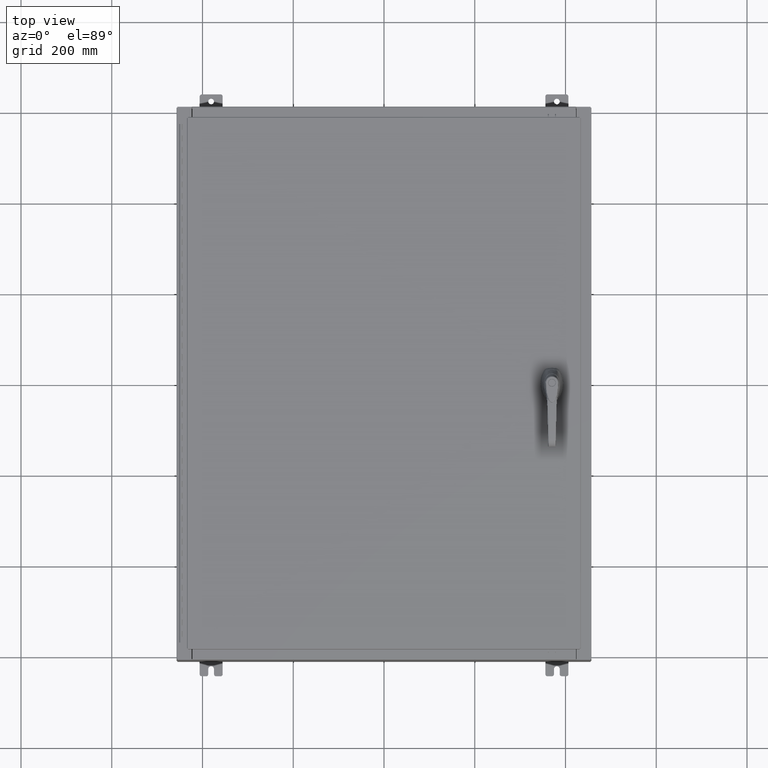
[diagram: clean part render]
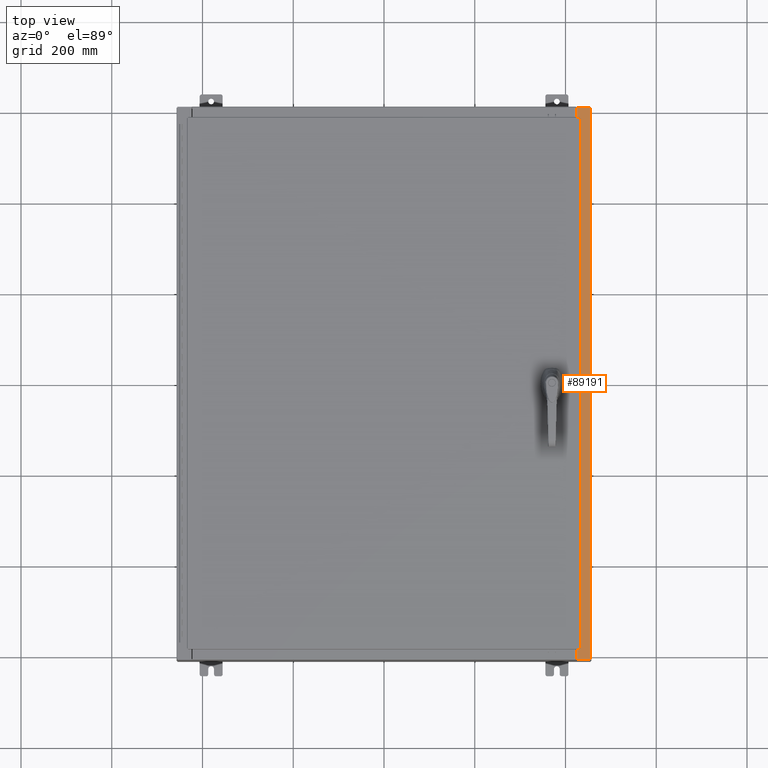
[diagram: same view with one face highlighted and labeled with its STEP entity id]
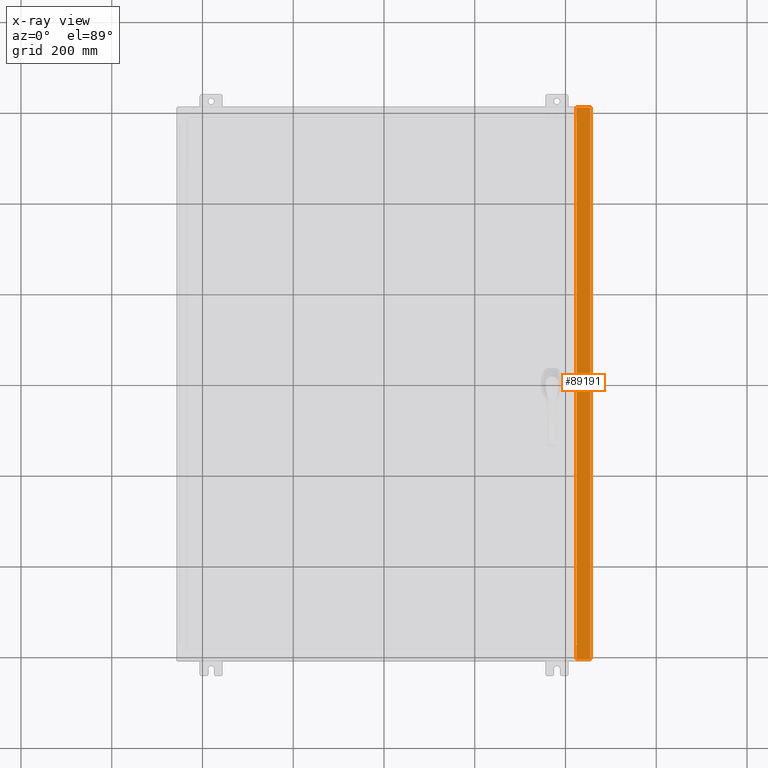
[diagram: x-ray of the same camera — body ghosted, the highlighted face saturated]
A machine part, top view. The second image highlights one B-rep face of the part: STEP entity #89191.
The next image is the same camera in x-ray: the body ghosted, the highlighted face saturated — about 0% of this face is hidden behind the body in this view.
In plain terms, the highlighted planar face has unit normal (-0, 0, -1).
Its self-contained STEP definition (entity closure, byte-faithful):
#1573 = VECTOR ( 'NONE', #47572, 39.37007874015748100 ) ;
#2113 = DIRECTION ( 'NONE',  ( -1.000000000000000000, 0.0000000000000000000, 5.349571789159788500E-015 ) ) ;
#2358 = VECTOR ( 'NONE', #132160, 39.37007874015748100 ) ;
#2533 = CIRCLE ( 'NONE', #20927, 0.01867499999999949400 ) ;
#3431 = CARTESIAN_POINT ( 'NONE',  ( 16.69970000000003200, 23.92529999999998200, 9.925300000000008900 ) ) ;
#5147 = EDGE_CURVE ( 'NONE', #54006, #90755, #16377, .T. ) ;
#5951 = ORIENTED_EDGE ( 'NONE', *, *, #68118, .T. ) ;
#6775 = CARTESIAN_POINT ( 'NONE',  ( 17.91230000000003000, -23.92529999999998900, 9.925300000000001800 ) ) ;
#7184 = VERTEX_POINT ( 'NONE', #61996 ) ;
#7575 = DIRECTION ( 'NONE',  ( -0.0000000000000000000, 1.000000000000000000, -0.0000000000000000000 ) ) ;
#7674 = DIRECTION ( 'NONE',  ( -0.0000000000000000000, -1.000000000000000000, -0.0000000000000000000 ) ) ;
#9935 = CARTESIAN_POINT ( 'NONE',  ( 16.75005000000003400, 22.59374999999995400, 9.925300000000008900 ) ) ;
#11044 = VECTOR ( 'NONE', #127291, 39.37007874015748100 ) ;
#11865 = CARTESIAN_POINT ( 'NONE',  ( 16.75005000000003400, -22.59374999999998900, 9.925300000000008900 ) ) ;
#16377 = LINE ( 'NONE', #18053, #92592 ) ;
#16663 = EDGE_CURVE ( 'NONE', #74339, #91528, #90484, .T. ) ;
#18053 = CARTESIAN_POINT ( 'NONE',  ( 16.75005000000003400, 22.63109999999995000, 9.925300000000010700 ) ) ;
#20611 = CARTESIAN_POINT ( 'NONE',  ( 17.91230000000003000, -23.92529999999998900, 9.925300000000001800 ) ) ;
#20927 = AXIS2_PLACEMENT_3D ( 'NONE', #56640, #129220, #67117 ) ;
#21874 = DIRECTION ( 'NONE',  ( 5.349571789159788500E-015, 0.0000000000000000000, 1.000000000000000000 ) ) ;
#24218 = VECTOR ( 'NONE', #75937, 39.37007874015748100 ) ;
#26387 = EDGE_CURVE ( 'NONE', #87501, #37890, #2533, .T. ) ;
#26669 = LINE ( 'NONE', #90959, #2358 ) ;
#29873 = DIRECTION ( 'NONE',  ( -1.000000000000000000, 0.0000000000000000000, 0.0000000000000000000 ) ) ;
#31518 = CARTESIAN_POINT ( 'NONE',  ( 16.69970000000003200, 22.63109999999995000, 9.925300000000008900 ) ) ;
#33915 = CARTESIAN_POINT ( 'NONE',  ( 5.335691853495976800E-014, -23.92529999999998900, 9.925300000000099500 ) ) ;
#34943 = CARTESIAN_POINT ( 'NONE',  ( 16.71270000000003400, 22.59374999999995400, 9.925300000000010700 ) ) ;
#37200 = CARTESIAN_POINT ( 'NONE',  ( 5.335691853495976800E-014, 23.92529999999998600, 9.925300000000099500 ) ) ;
#37890 = VERTEX_POINT ( 'NONE', #11865 ) ;
#38281 = ORIENTED_EDGE ( 'NONE', *, *, #63028, .T. ) ;
#42449 = VECTOR ( 'NONE', #29873, 39.37007874015748100 ) ;
#45011 = CARTESIAN_POINT ( 'NONE',  ( 16.69970000000003200, -5.350181231484365000E-030, 9.925300000000008900 ) ) ;
#47572 = DIRECTION ( 'NONE',  ( -1.000000000000000000, 0.0000000000000000000, 5.349571789159789300E-015 ) ) ;
#47721 = ORIENTED_EDGE ( 'NONE', *, *, #5147, .F. ) ;
#52962 = ORIENTED_EDGE ( 'NONE', *, *, #16663, .T. ) ;
#53361 = ORIENTED_EDGE ( 'NONE', *, *, #74529, .F. ) ;
#53723 = PLANE ( 'NONE',  #130874 ) ;
#54006 = VERTEX_POINT ( 'NONE', #112547 ) ;
#54159 = LINE ( 'NONE', #131728, #85071 ) ;
#56619 = LINE ( 'NONE', #37200, #1573 ) ;
#56640 = CARTESIAN_POINT ( 'NONE',  ( 16.75005000000003400, -22.61242499999998800, 9.925300000000010700 ) ) ;
#58843 = CIRCLE ( 'NONE', #110062, 0.01867499999999949400 ) ;
#60650 = CARTESIAN_POINT ( 'NONE',  ( 16.75005000000003400, -22.59374999999998900, 9.925300000000010700 ) ) ;
#61996 = CARTESIAN_POINT ( 'NONE',  ( 16.71270000000003400, -22.59374999999998900, 9.925300000000010700 ) ) ;
#63028 = EDGE_CURVE ( 'NONE', #91470, #74339, #79327, .T. ) ;
#64214 = DIRECTION ( 'NONE',  ( -5.349571789159788500E-015, 0.0000000000000000000, -1.000000000000000000 ) ) ;
#65472 = EDGE_LOOP ( 'NONE', ( #90380, #38281, #52962, #112206, #91919, #5951, #47721, #79160, #53361, #97358, #106817, #67212 ) ) ;
#66841 = LINE ( 'NONE', #60650, #42449 ) ;
#67117 = DIRECTION ( 'NONE',  ( 1.000000000000000000, 0.0000000000000000000, 0.0000000000000000000 ) ) ;
#67212 = ORIENTED_EDGE ( 'NONE', *, *, #26387, .F. ) ;
#67923 = LINE ( 'NONE', #105627, #116581 ) ;
#67947 = VERTEX_POINT ( 'NONE', #77796 ) ;
#68118 = EDGE_CURVE ( 'NONE', #114684, #90755, #26669, .T. ) ;
#73563 = VERTEX_POINT ( 'NONE', #9935 ) ;
#74339 = VERTEX_POINT ( 'NONE', #82230 ) ;
#74529 = EDGE_CURVE ( 'NONE', #100703, #73563, #105072, .T. ) ;
#75937 = DIRECTION ( 'NONE',  ( -3.203758888773074600E-031, -1.000000000000000000, 1.713873817065035100E-045 ) ) ;
#77796 = CARTESIAN_POINT ( 'NONE',  ( 17.91230000000003000, 23.92529999999998600, 9.925300000000001800 ) ) ;
#79160 = ORIENTED_EDGE ( 'NONE', *, *, #83553, .F. ) ;
#79327 = LINE ( 'NONE', #45011, #24218 ) ;
#80294 = EDGE_CURVE ( 'NONE', #67947, #91528, #124295, .T. ) ;
#82230 = CARTESIAN_POINT ( 'NONE',  ( 16.69970000000003200, -23.92529999999998900, 9.925300000000008900 ) ) ;
#83553 = EDGE_CURVE ( 'NONE', #73563, #54006, #58843, .T. ) ;
#83958 = CARTESIAN_POINT ( 'NONE',  ( 16.75005000000003400, 22.61242499999995200, 9.925300000000010700 ) ) ;
#85071 = VECTOR ( 'NONE', #7575, 39.37007874015748100 ) ;
#87501 = VERTEX_POINT ( 'NONE', #115250 ) ;
#88227 = EDGE_CURVE ( 'NONE', #67947, #114684, #56619, .T. ) ;
#88578 = FACE_OUTER_BOUND ( 'NONE', #65472, .T. ) ;
#89191 = ADVANCED_FACE ( 'NONE', ( #88578 ), #53723, .F. ) ;
#90380 = ORIENTED_EDGE ( 'NONE', *, *, #106033, .F. ) ;
#90484 = LINE ( 'NONE', #33915, #11044 ) ;
#90597 = DIRECTION ( 'NONE',  ( -1.000000000000000000, 0.0000000000000000000, 0.0000000000000000000 ) ) ;
#90687 = EDGE_CURVE ( 'NONE', #7184, #100703, #54159, .T. ) ;
#90755 = VERTEX_POINT ( 'NONE', #31518 ) ;
#90912 = CARTESIAN_POINT ( 'NONE',  ( 16.69970000000003200, -22.63109999999998600, 9.925300000000008900 ) ) ;
#90959 = CARTESIAN_POINT ( 'NONE',  ( 16.69970000000003200, -5.350181231484365000E-030, 9.925300000000008900 ) ) ;
#91470 = VERTEX_POINT ( 'NONE', #90912 ) ;
#91528 = VERTEX_POINT ( 'NONE', #20611 ) ;
#91919 = ORIENTED_EDGE ( 'NONE', *, *, #88227, .T. ) ;
#92592 = VECTOR ( 'NONE', #90597, 39.37007874015748100 ) ;
#94372 = DIRECTION ( 'NONE',  ( 1.000000000000000000, 0.0000000000000000000, 0.0000000000000000000 ) ) ;
#96723 = VECTOR ( 'NONE', #7674, 39.37007874015748100 ) ;
#97358 = ORIENTED_EDGE ( 'NONE', *, *, #90687, .F. ) ;
#100703 = VERTEX_POINT ( 'NONE', #34943 ) ;
#105072 = LINE ( 'NONE', #130200, #129403 ) ;
#105627 = CARTESIAN_POINT ( 'NONE',  ( 16.69970000000003200, -22.63109999999998600, 9.925300000000010700 ) ) ;
#106033 = EDGE_CURVE ( 'NONE', #91470, #87501, #67923, .T. ) ;
#106817 = ORIENTED_EDGE ( 'NONE', *, *, #127506, .F. ) ;
#109332 = DIRECTION ( 'NONE',  ( 1.000000000000000000, 0.0000000000000000000, 0.0000000000000000000 ) ) ;
#110062 = AXIS2_PLACEMENT_3D ( 'NONE', #83958, #21874, #94372 ) ;
#112206 = ORIENTED_EDGE ( 'NONE', *, *, #80294, .F. ) ;
#112547 = CARTESIAN_POINT ( 'NONE',  ( 16.75005000000003400, 22.63109999999995000, 9.925300000000008900 ) ) ;
#114684 = VERTEX_POINT ( 'NONE', #3431 ) ;
#115250 = CARTESIAN_POINT ( 'NONE',  ( 16.75005000000003400, -22.63109999999998600, 9.925300000000008900 ) ) ;
#116077 = DIRECTION ( 'NONE',  ( 1.000000000000000000, 0.0000000000000000000, 0.0000000000000000000 ) ) ;
#116581 = VECTOR ( 'NONE', #116077, 39.37007874015748100 ) ;
#124295 = LINE ( 'NONE', #6775, #96723 ) ;
#126272 = CARTESIAN_POINT ( 'NONE',  ( 5.335691853495976800E-014, 0.0000000000000000000, 9.925300000000099500 ) ) ;
#127291 = DIRECTION ( 'NONE',  ( 1.000000000000000000, 8.144358738339257800E-032, -5.349571789159789300E-015 ) ) ;
#127506 = EDGE_CURVE ( 'NONE', #37890, #7184, #66841, .T. ) ;
#129220 = DIRECTION ( 'NONE',  ( 5.349571789159788500E-015, 0.0000000000000000000, 1.000000000000000000 ) ) ;
#129403 = VECTOR ( 'NONE', #109332, 39.37007874015748100 ) ;
#130200 = CARTESIAN_POINT ( 'NONE',  ( 16.71270000000003400, 22.59374999999995400, 9.925300000000010700 ) ) ;
#130874 = AXIS2_PLACEMENT_3D ( 'NONE', #126272, #64214, #2113 ) ;
#131728 = CARTESIAN_POINT ( 'NONE',  ( 16.71270000000003400, -22.59374999999997900, 9.925300000000010700 ) ) ;
#132160 = DIRECTION ( 'NONE',  ( -3.203758888773074600E-031, -1.000000000000000000, 1.713873817065035100E-045 ) ) ;